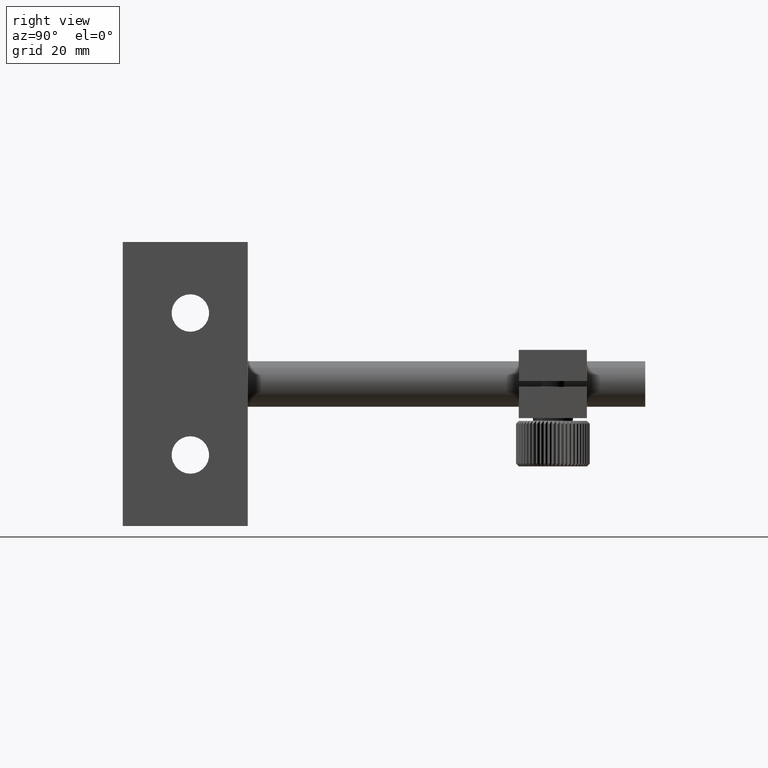
[diagram: clean part render]
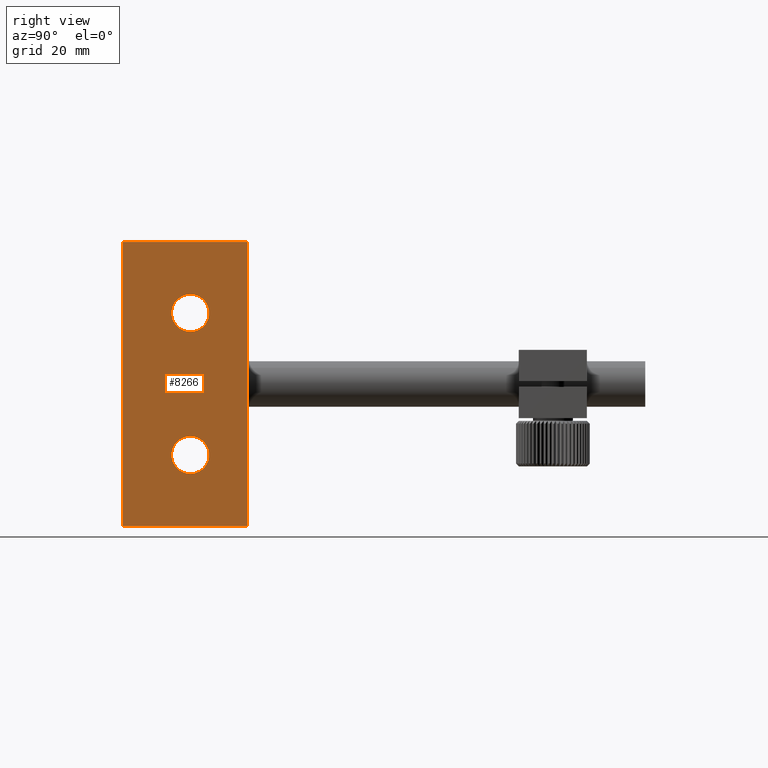
[diagram: same view with one face highlighted and labeled with its STEP entity id]
A machine part, right view. The second image highlights one B-rep face of the part: STEP entity #8266.
In plain terms, the highlighted planar face has unit normal (1, 0, -0).
Its self-contained STEP definition (entity closure, byte-faithful):
#499 = AXIS2_PLACEMENT_3D ( 'NONE', #5091, #3175, #7568 ) ;
#567 = EDGE_LOOP ( 'NONE', ( #9983, #6913, #9358, #10057 ) ) ;
#647 = CARTESIAN_POINT ( 'NONE',  ( 34.28603302097278100, 5.309861668897811500, 15.79999999999998100 ) ) ;
#714 = CARTESIAN_POINT ( 'NONE',  ( 34.28603302097278100, 15.40986166889786100, 25.00000000000000000 ) ) ;
#778 = VECTOR ( 'NONE', #5945, 1000.000000000000000 ) ;
#1168 = EDGE_CURVE ( 'NONE', #8078, #6967, #5014, .T. ) ;
#1171 = VERTEX_POINT ( 'NONE', #2029 ) ;
#1526 = CARTESIAN_POINT ( 'NONE',  ( 34.28603302097278100, -6.590138331102189700, -25.00000000000000000 ) ) ;
#1647 = LINE ( 'NONE', #1526, #3295 ) ;
#1707 = DIRECTION ( 'NONE',  ( 0.0000000000000000000, 0.0000000000000000000, 1.000000000000000000 ) ) ;
#1866 = VERTEX_POINT ( 'NONE', #10792 ) ;
#2029 = CARTESIAN_POINT ( 'NONE',  ( 34.28603302097278100, 5.309861668897811500, -9.200000000000017100 ) ) ;
#2049 = DIRECTION ( 'NONE',  ( -1.000000000000000000, -0.0000000000000000000, -0.0000000000000000000 ) ) ;
#2194 = DIRECTION ( 'NONE',  ( -1.000000000000000000, -0.0000000000000000000, -0.0000000000000000000 ) ) ;
#2251 = CARTESIAN_POINT ( 'NONE',  ( 34.28603302097278100, 15.40986166889786100, -25.00000000000000000 ) ) ;
#2637 = ORIENTED_EDGE ( 'NONE', *, *, #4087, .T. ) ;
#3073 = CARTESIAN_POINT ( 'NONE',  ( 34.28603302097278100, 5.309861668897811500, 12.50000000000000000 ) ) ;
#3175 = DIRECTION ( 'NONE',  ( 1.000000000000000000, 0.0000000000000000000, -0.0000000000000000000 ) ) ;
#3295 = VECTOR ( 'NONE', #13336, 1000.000000000000000 ) ;
#3315 = EDGE_CURVE ( 'NONE', #9590, #12808, #11203, .T. ) ;
#3344 = CARTESIAN_POINT ( 'NONE',  ( 34.28603302097278100, 5.309861668897811500, -12.49999999999999800 ) ) ;
#3448 = EDGE_CURVE ( 'NONE', #5398, #8078, #7194, .T. ) ;
#3586 = ORIENTED_EDGE ( 'NONE', *, *, #3315, .T. ) ;
#3603 = LINE ( 'NONE', #9069, #778 ) ;
#3972 = ORIENTED_EDGE ( 'NONE', *, *, #12208, .T. ) ;
#4087 = EDGE_CURVE ( 'NONE', #1171, #1866, #5794, .T. ) ;
#4137 = EDGE_CURVE ( 'NONE', #5398, #8628, #1647, .T. ) ;
#4496 = EDGE_LOOP ( 'NONE', ( #2637, #7389 ) ) ;
#4579 = CIRCLE ( 'NONE', #10851, 3.299999999999979800 ) ;
#4908 = AXIS2_PLACEMENT_3D ( 'NONE', #3073, #2194, #5267 ) ;
#5014 = LINE ( 'NONE', #7577, #11411 ) ;
#5040 = EDGE_CURVE ( 'NONE', #1866, #1171, #11838, .T. ) ;
#5091 = CARTESIAN_POINT ( 'NONE',  ( 34.28603302097278100, 15.40986166889786100, -25.00000000000000000 ) ) ;
#5267 = DIRECTION ( 'NONE',  ( 0.0000000000000000000, 0.0000000000000000000, 1.000000000000000000 ) ) ;
#5365 = CARTESIAN_POINT ( 'NONE',  ( 34.28603302097278100, 5.309861668897811500, -12.49999999999999800 ) ) ;
#5398 = VERTEX_POINT ( 'NONE', #13330 ) ;
#5428 = CARTESIAN_POINT ( 'NONE',  ( 34.28603302097278100, 5.309861668897811500, 9.200000000000018800 ) ) ;
#5448 = EDGE_CURVE ( 'NONE', #8628, #6967, #3603, .T. ) ;
#5794 = CIRCLE ( 'NONE', #8265, 3.299999999999981600 ) ;
#5945 = DIRECTION ( 'NONE',  ( -0.0000000000000000000, 1.000000000000000000, -0.0000000000000000000 ) ) ;
#6352 = EDGE_LOOP ( 'NONE', ( #3586, #3972 ) ) ;
#6362 = DIRECTION ( 'NONE',  ( -0.0000000000000000000, 1.000000000000000000, -0.0000000000000000000 ) ) ;
#6913 = ORIENTED_EDGE ( 'NONE', *, *, #5448, .F. ) ;
#6967 = VERTEX_POINT ( 'NONE', #714 ) ;
#7194 = LINE ( 'NONE', #2251, #8371 ) ;
#7389 = ORIENTED_EDGE ( 'NONE', *, *, #5040, .T. ) ;
#7568 = DIRECTION ( 'NONE',  ( -0.0000000000000000000, 0.0000000000000000000, -1.000000000000000000 ) ) ;
#7577 = CARTESIAN_POINT ( 'NONE',  ( 34.28603302097278100, 15.40986166889786100, -25.00000000000000000 ) ) ;
#8043 = DIRECTION ( 'NONE',  ( -1.000000000000000000, -0.0000000000000000000, -0.0000000000000000000 ) ) ;
#8078 = VERTEX_POINT ( 'NONE', #13426 ) ;
#8132 = CARTESIAN_POINT ( 'NONE',  ( 34.28603302097278100, 5.309861668897811500, 12.50000000000000000 ) ) ;
#8265 = AXIS2_PLACEMENT_3D ( 'NONE', #3344, #10845, #11879 ) ;
#8266 = ADVANCED_FACE ( 'NONE', ( #11693, #12878, #12353 ), #11490, .T. ) ;
#8371 = VECTOR ( 'NONE', #6362, 1000.000000000000000 ) ;
#8628 = VERTEX_POINT ( 'NONE', #9152 ) ;
#8654 = DIRECTION ( 'NONE',  ( 0.0000000000000000000, 0.0000000000000000000, 1.000000000000000000 ) ) ;
#9069 = CARTESIAN_POINT ( 'NONE',  ( 34.28603302097278100, 15.40986166889786100, 25.00000000000000000 ) ) ;
#9152 = CARTESIAN_POINT ( 'NONE',  ( 34.28603302097278100, -6.590138331102189700, 25.00000000000000000 ) ) ;
#9358 = ORIENTED_EDGE ( 'NONE', *, *, #4137, .F. ) ;
#9590 = VERTEX_POINT ( 'NONE', #647 ) ;
#9614 = AXIS2_PLACEMENT_3D ( 'NONE', #5365, #2049, #12867 ) ;
#9983 = ORIENTED_EDGE ( 'NONE', *, *, #1168, .T. ) ;
#10057 = ORIENTED_EDGE ( 'NONE', *, *, #3448, .T. ) ;
#10792 = CARTESIAN_POINT ( 'NONE',  ( 34.28603302097278100, 5.309861668897811500, -15.79999999999998100 ) ) ;
#10845 = DIRECTION ( 'NONE',  ( -1.000000000000000000, -0.0000000000000000000, -0.0000000000000000000 ) ) ;
#10851 = AXIS2_PLACEMENT_3D ( 'NONE', #8132, #8043, #1707 ) ;
#11203 = CIRCLE ( 'NONE', #4908, 3.299999999999979800 ) ;
#11411 = VECTOR ( 'NONE', #8654, 1000.000000000000000 ) ;
#11490 = PLANE ( 'NONE',  #499 ) ;
#11693 = FACE_BOUND ( 'NONE', #6352, .T. ) ;
#11838 = CIRCLE ( 'NONE', #9614, 3.299999999999981600 ) ;
#11879 = DIRECTION ( 'NONE',  ( 0.0000000000000000000, 0.0000000000000000000, 1.000000000000000000 ) ) ;
#12208 = EDGE_CURVE ( 'NONE', #12808, #9590, #4579, .T. ) ;
#12353 = FACE_OUTER_BOUND ( 'NONE', #567, .T. ) ;
#12808 = VERTEX_POINT ( 'NONE', #5428 ) ;
#12867 = DIRECTION ( 'NONE',  ( 0.0000000000000000000, 0.0000000000000000000, 1.000000000000000000 ) ) ;
#12878 = FACE_BOUND ( 'NONE', #4496, .T. ) ;
#13330 = CARTESIAN_POINT ( 'NONE',  ( 34.28603302097278100, -6.590138331102189700, -25.00000000000000000 ) ) ;
#13336 = DIRECTION ( 'NONE',  ( 0.0000000000000000000, 0.0000000000000000000, 1.000000000000000000 ) ) ;
#13426 = CARTESIAN_POINT ( 'NONE',  ( 34.28603302097278100, 15.40986166889786100, -25.00000000000000000 ) ) ;